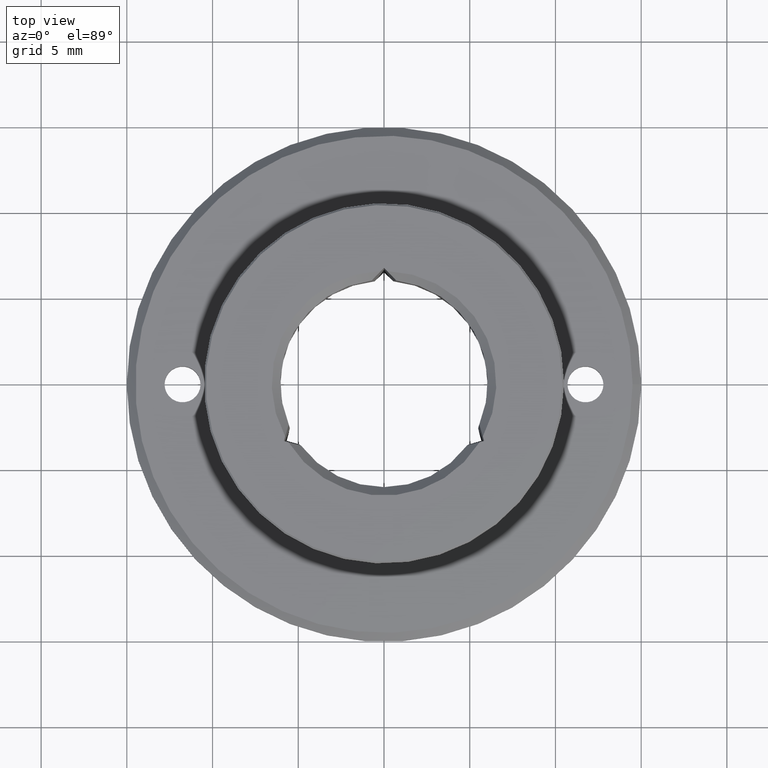
[diagram: clean part render]
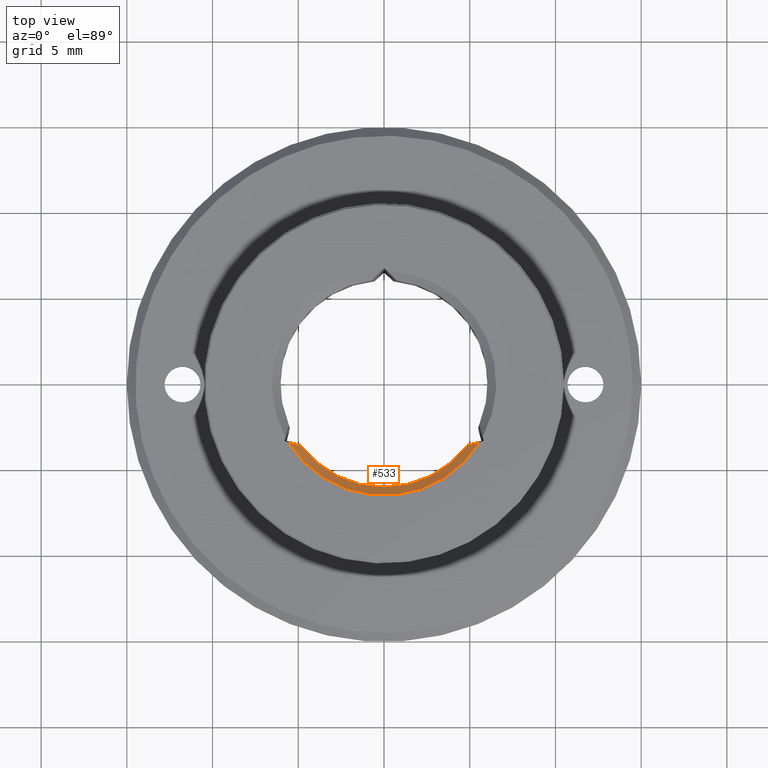
[diagram: same view with one face highlighted and labeled with its STEP entity id]
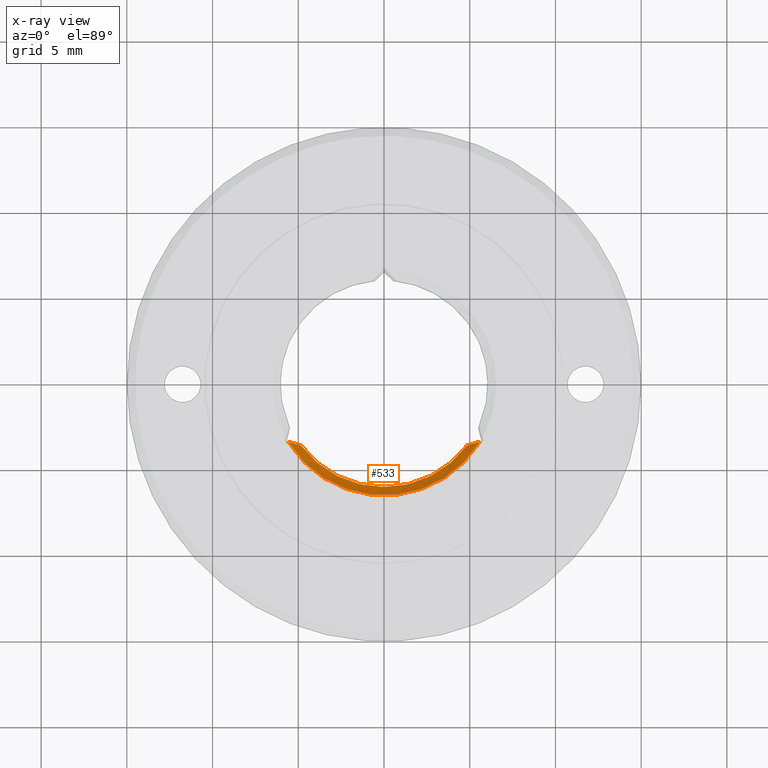
[diagram: x-ray of the same camera — body ghosted, the highlighted face saturated]
A machine part, top view. The second image highlights one B-rep face of the part: STEP entity #533.
The next image is the same camera in x-ray: the body ghosted, the highlighted face saturated — about 0% of this face is hidden behind the body in this view.
In plain terms, the highlighted conical surface has half-angle 45 deg.
Its self-contained STEP definition (entity closure, byte-faithful):
#18 = CARTESIAN_POINT ( 'NONE',  ( -5.577473270500524549, -3.434281863337980578, 2.500000000000002220 ) ) ;
#26 = AXIS2_PLACEMENT_3D ( 'NONE', #721, #573, #644 ) ;
#72 = VERTEX_POINT ( 'NONE', #312 ) ;
#149 = VERTEX_POINT ( 'NONE', #651 ) ;
#185 = EDGE_CURVE ( 'NONE', #72, #243, #285, .T. ) ;
#196 = CARTESIAN_POINT ( 'NONE',  ( 5.577473270500571623, -3.434281863337903307, 2.500000000000001776 ) ) ;
#210 = CARTESIAN_POINT ( 'NONE',  ( -5.096473806459425937, -3.554575270419742861, 2.160495414665194236 ) ) ;
#243 = VERTEX_POINT ( 'NONE', #196 ) ;
#247 = CARTESIAN_POINT ( 'NONE',  ( 5.577473270500571623, -3.434281863337903307, 2.500000000000001776 ) ) ;
#270 = AXIS2_PLACEMENT_3D ( 'NONE', #640, #849, #570 ) ;
#285 = CIRCLE ( 'NONE', #448, 6.550000000000000711 ) ;
#290 = B_SPLINE_CURVE_WITH_KNOTS ( 'NONE', 3,
 ( #247, #396, #393, #665 ),
 .UNSPECIFIED., .F., .F.,
 ( 4, 4 ),
 ( 3.489634726309341076E-07, 0.0009016471190607880251 ),
 .UNSPECIFIED. ) ;
#312 = CARTESIAN_POINT ( 'NONE',  ( -5.577473270500524549, -3.434281863337980578, 2.500000000000002220 ) ) ;
#331 = B_SPLINE_CURVE_WITH_KNOTS ( 'NONE', 3,
 ( #366, #210, #544, #18 ),
 .UNSPECIFIED., .F., .F.,
 ( 4, 4 ),
 ( 3.743883699551102938E-07, 0.0009016725439581060528 ),
 .UNSPECIFIED. ) ;
#365 = ORIENTED_EDGE ( 'NONE', *, *, #526, .F. ) ;
#366 = CARTESIAN_POINT ( 'NONE',  ( -4.850066468594325109, -3.616539126045364760, 2.000000000000015099 ) ) ;
#375 = VERTEX_POINT ( 'NONE', #484 ) ;
#377 = EDGE_CURVE ( 'NONE', #149, #72, #331, .T. ) ;
#393 = CARTESIAN_POINT ( 'NONE',  ( 5.096473806459470346, -3.554575270419678468, 2.160495414665194236 ) ) ;
#396 = CARTESIAN_POINT ( 'NONE',  ( 5.338525329726858004, -3.493951243107796145, 2.327816139852492583 ) ) ;
#404 = DIRECTION ( 'NONE',  ( 1.000000000000000000, 0.0000000000000000000, 0.0000000000000000000 ) ) ;
#406 = CIRCLE ( 'NONE', #270, 6.049999999999999822 ) ;
#448 = AXIS2_PLACEMENT_3D ( 'NONE', #749, #738, #404 ) ;
#484 = CARTESIAN_POINT ( 'NONE',  ( 4.850066468594370406, -3.616539126045306141, 2.000000000000015099 ) ) ;
#526 = EDGE_CURVE ( 'NONE', #149, #375, #406, .T. ) ;
#530 = EDGE_LOOP ( 'NONE', ( #365, #794, #840, #599 ) ) ;
#533 = ADVANCED_FACE ( 'NONE', ( #846 ), #844, .F. ) ;
#544 = CARTESIAN_POINT ( 'NONE',  ( -5.338525329726811819, -3.493951243107867199, 2.327816139852492583 ) ) ;
#570 = DIRECTION ( 'NONE',  ( 1.000000000000000000, 0.0000000000000000000, 0.0000000000000000000 ) ) ;
#573 = DIRECTION ( 'NONE',  ( -0.0000000000000000000, -0.0000000000000000000, 1.000000000000000000 ) ) ;
#599 = ORIENTED_EDGE ( 'NONE', *, *, #725, .T. ) ;
#640 = CARTESIAN_POINT ( 'NONE',  ( 0.0000000000000000000, 0.0000000000000000000, 2.000000000000000888 ) ) ;
#644 = DIRECTION ( 'NONE',  ( 1.000000000000000000, 0.0000000000000000000, 0.0000000000000000000 ) ) ;
#651 = CARTESIAN_POINT ( 'NONE',  ( -4.850066468594325109, -3.616539126045364760, 2.000000000000015099 ) ) ;
#665 = CARTESIAN_POINT ( 'NONE',  ( 4.850066468594370406, -3.616539126045306141, 2.000000000000015099 ) ) ;
#721 = CARTESIAN_POINT ( 'NONE',  ( 0.0000000000000000000, 0.0000000000000000000, 2.500000000000001332 ) ) ;
#725 = EDGE_CURVE ( 'NONE', #243, #375, #290, .T. ) ;
#738 = DIRECTION ( 'NONE',  ( -0.0000000000000000000, -0.0000000000000000000, 1.000000000000000000 ) ) ;
#749 = CARTESIAN_POINT ( 'NONE',  ( 0.0000000000000000000, 0.0000000000000000000, 2.500000000000001332 ) ) ;
#794 = ORIENTED_EDGE ( 'NONE', *, *, #377, .T. ) ;
#840 = ORIENTED_EDGE ( 'NONE', *, *, #185, .T. ) ;
#844 = CONICAL_SURFACE ( 'NONE', #26, 6.550000000000000711, 0.7853981633974482790 ) ;
#846 = FACE_OUTER_BOUND ( 'NONE', #530, .T. ) ;
#849 = DIRECTION ( 'NONE',  ( -0.0000000000000000000, -0.0000000000000000000, 1.000000000000000000 ) ) ;